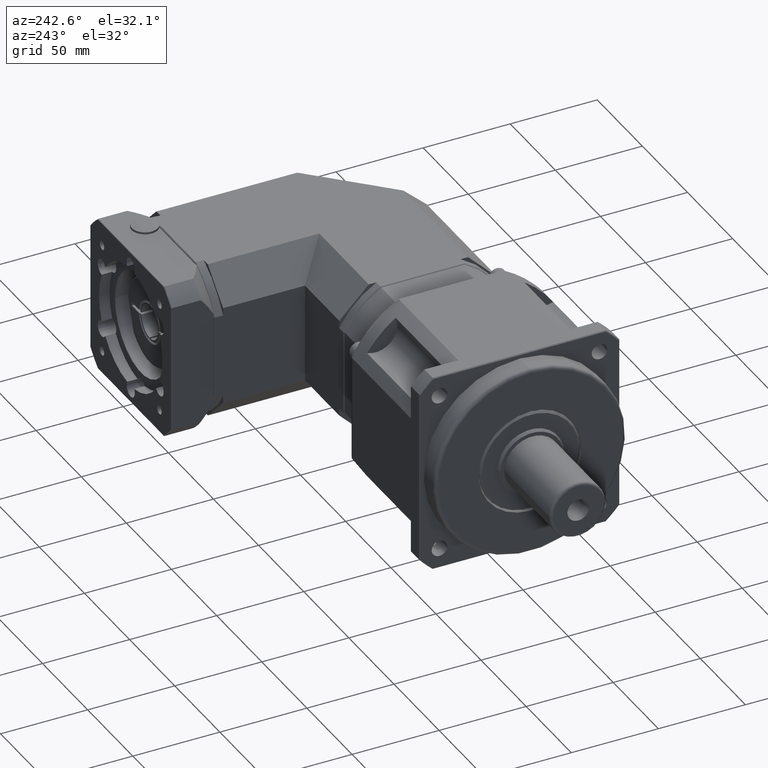
[diagram: clean part render]
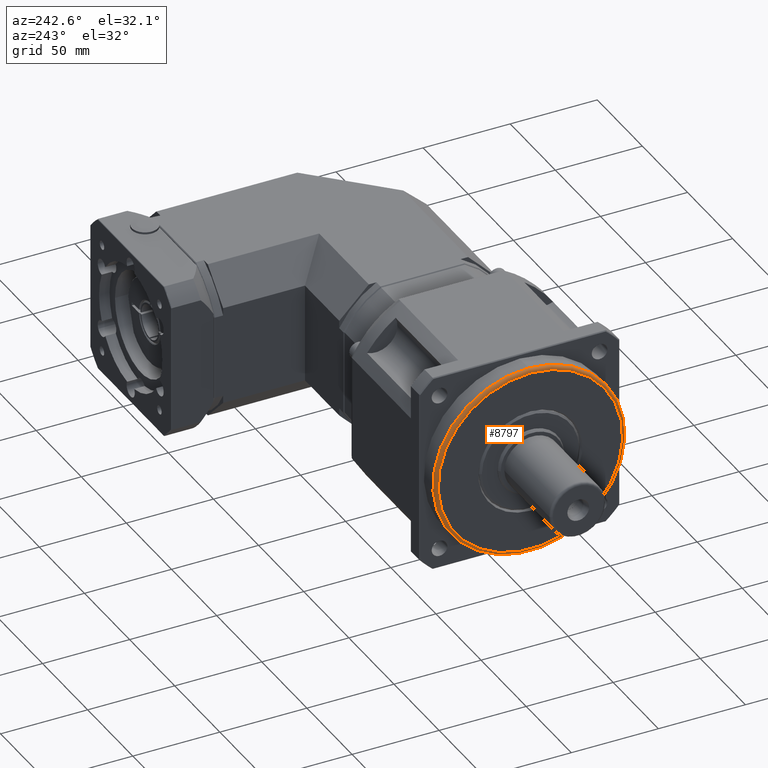
[diagram: same view with one face highlighted and labeled with its STEP entity id]
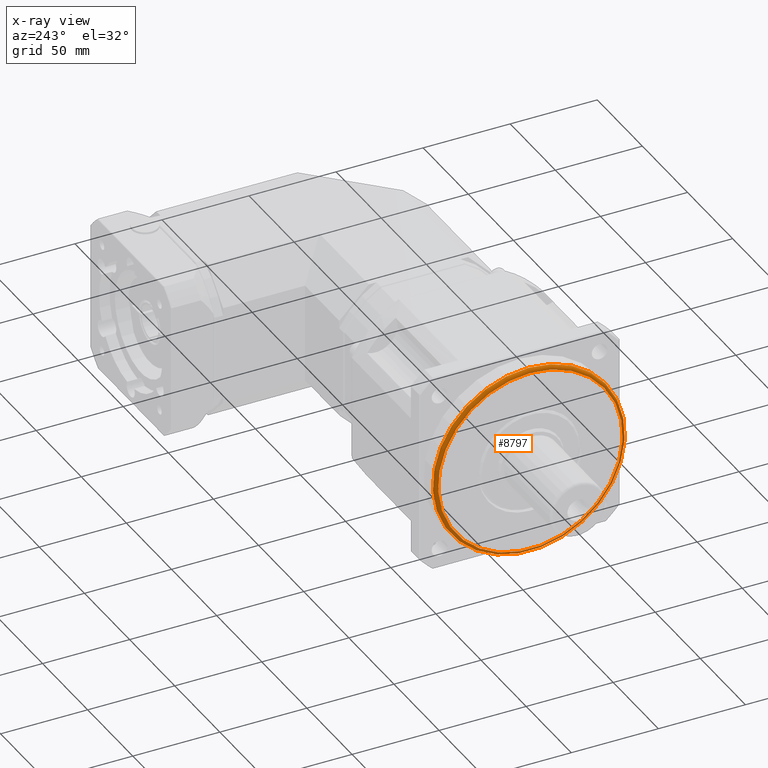
[diagram: x-ray of the same camera — body ghosted, the highlighted face saturated]
A machine part, auxiliary view. The second image highlights one B-rep face of the part: STEP entity #8797.
The next image is the same camera in x-ray: the body ghosted, the highlighted face saturated — about 4% of this face is hidden behind the body in this view.
In plain terms, the highlighted toroidal blend (fillet) surface has major radius 53 mm and minor (blend) radius 2 mm.
Its self-contained STEP definition (entity closure, byte-faithful):
#1251=TOROIDAL_SURFACE('',#9649,53.,2.);
#1901=FACE_BOUND('',#3146,.T.);
#2439=FACE_OUTER_BOUND('',#3145,.T.);
#3145=EDGE_LOOP('',(#6939));
#3146=EDGE_LOOP('',(#6940));
#3816=CIRCLE('',#9646,55.);
#3817=CIRCLE('',#9648,53.);
#4379=VERTEX_POINT('',#14232);
#4380=VERTEX_POINT('',#14235);
#5333=EDGE_CURVE('',#4379,#4379,#3816,.T.);
#5334=EDGE_CURVE('',#4380,#4380,#3817,.T.);
#6939=ORIENTED_EDGE('',*,*,#5333,.T.);
#6940=ORIENTED_EDGE('',*,*,#5334,.T.);
#8797=ADVANCED_FACE('',(#2439,#1901),#1251,.T.);
#9646=AXIS2_PLACEMENT_3D('',#14233,#11327,#11328);
#9648=AXIS2_PLACEMENT_3D('',#14236,#11331,#11332);
#9649=AXIS2_PLACEMENT_3D('',#14237,#11333,#11334);
#11327=DIRECTION('center_axis',(-1.,3.12250225675824E-16,7.28688222839997E-17));
#11328=DIRECTION('ref_axis',(-7.28688222839994E-17,6.55725473919233E-16,
-1.));
#11331=DIRECTION('center_axis',(1.,-3.12250225675824E-16,-7.28688222839997E-17));
#11332=DIRECTION('ref_axis',(-7.28688222839994E-17,6.55725473919233E-16,
-1.));
#11333=DIRECTION('center_axis',(-1.,3.12250225675824E-16,7.28688222839997E-17));
#11334=DIRECTION('ref_axis',(0.,-6.45947941600091E-16,1.));
#14232=CARTESIAN_POINT('',(-129.314563485638,36.0608220023815,133.375721489125));
#14233=CARTESIAN_POINT('Origin',(-129.314563485638,36.0608220023815,78.375721489125));
#14235=CARTESIAN_POINT('',(-131.314563485638,36.0608220023815,131.375721489125));
#14236=CARTESIAN_POINT('Origin',(-131.314563485638,36.0608220023815,78.375721489125));
#14237=CARTESIAN_POINT('Origin',(-129.314563485638,36.0608220023815,78.375721489125));